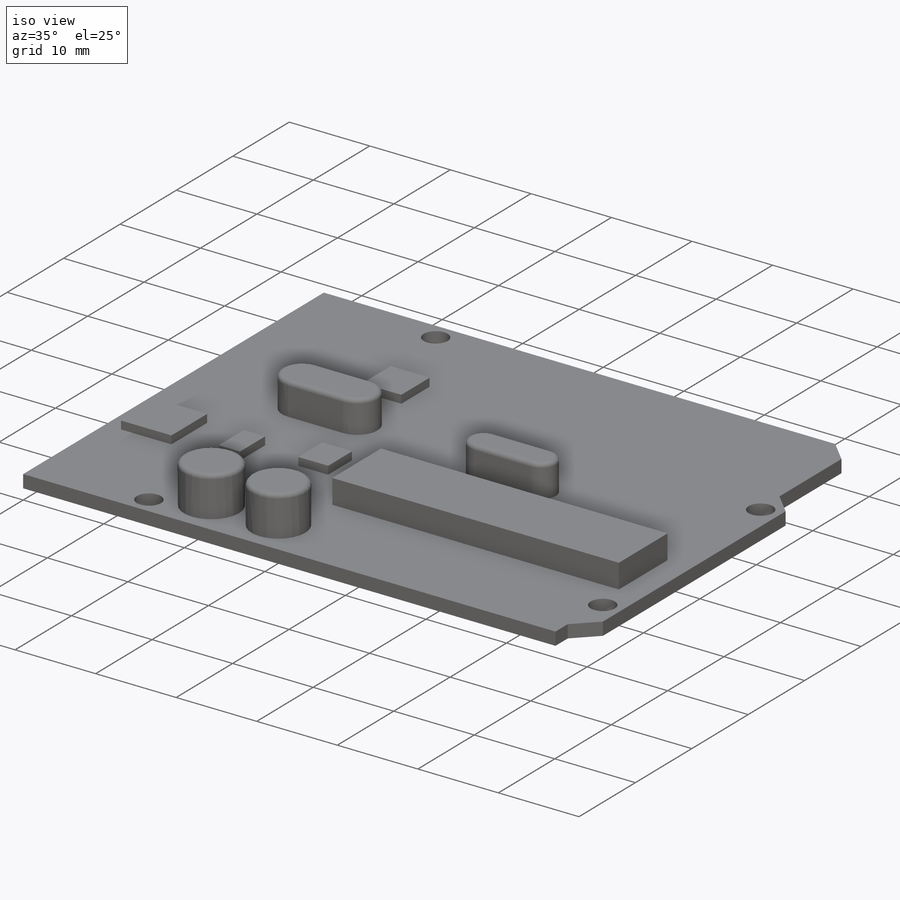
[diagram: iso view]
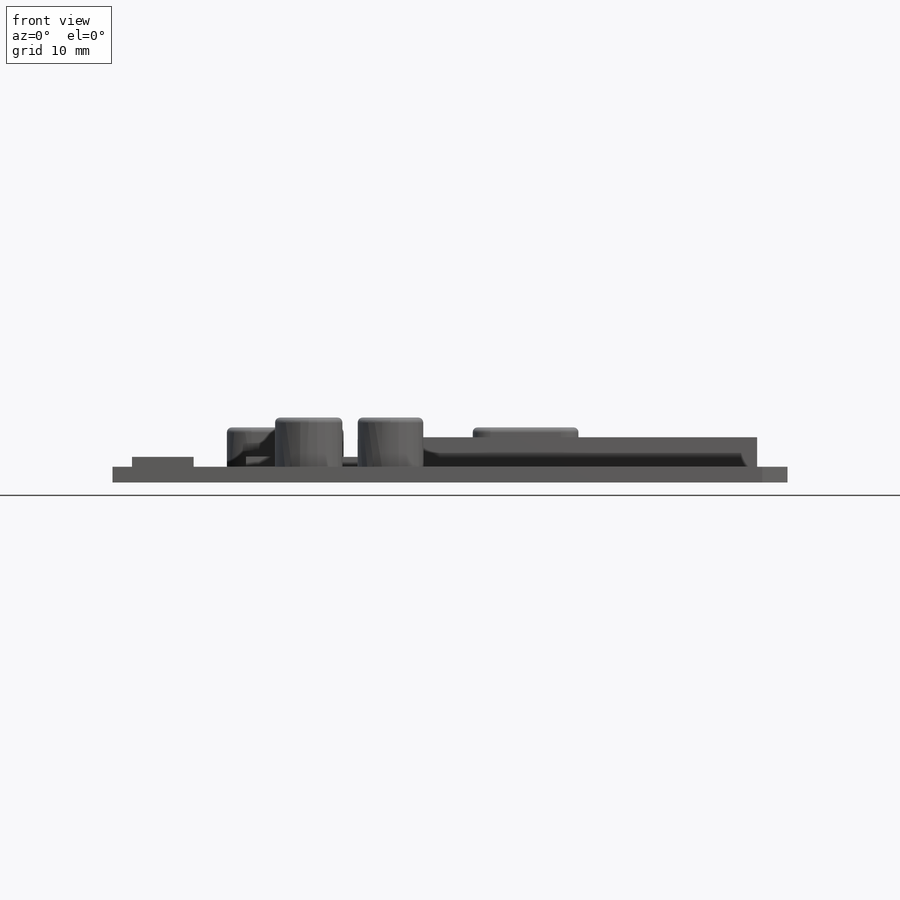
[diagram: front view]
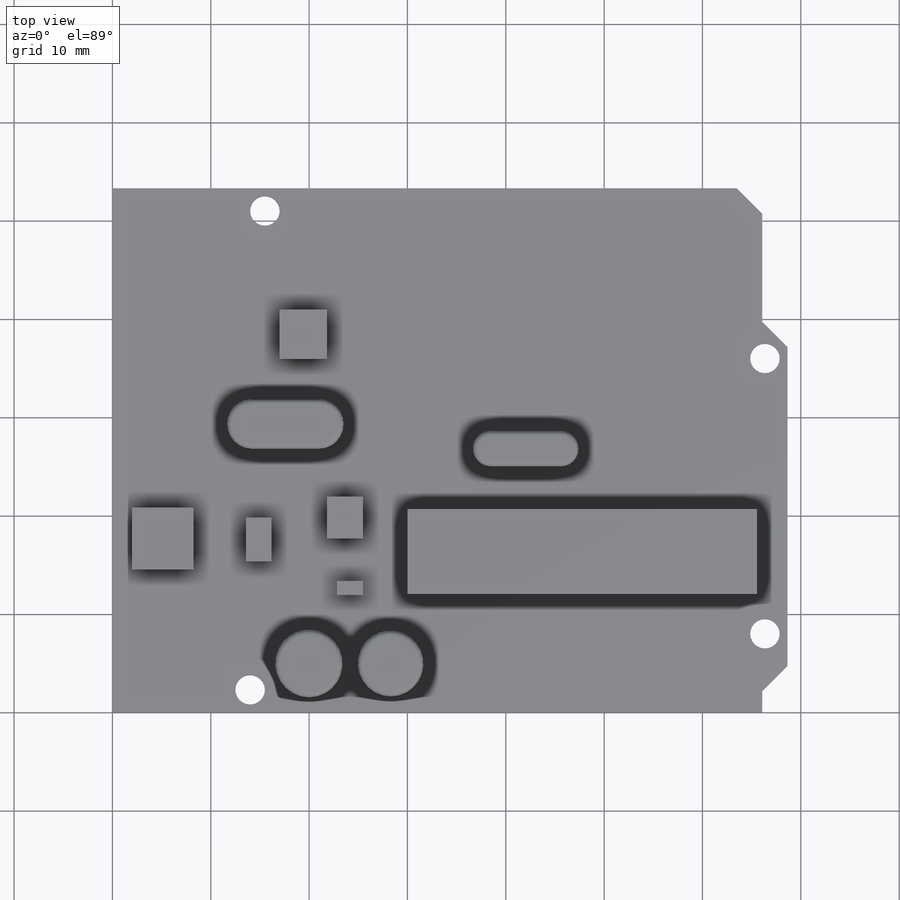
[diagram: top view]
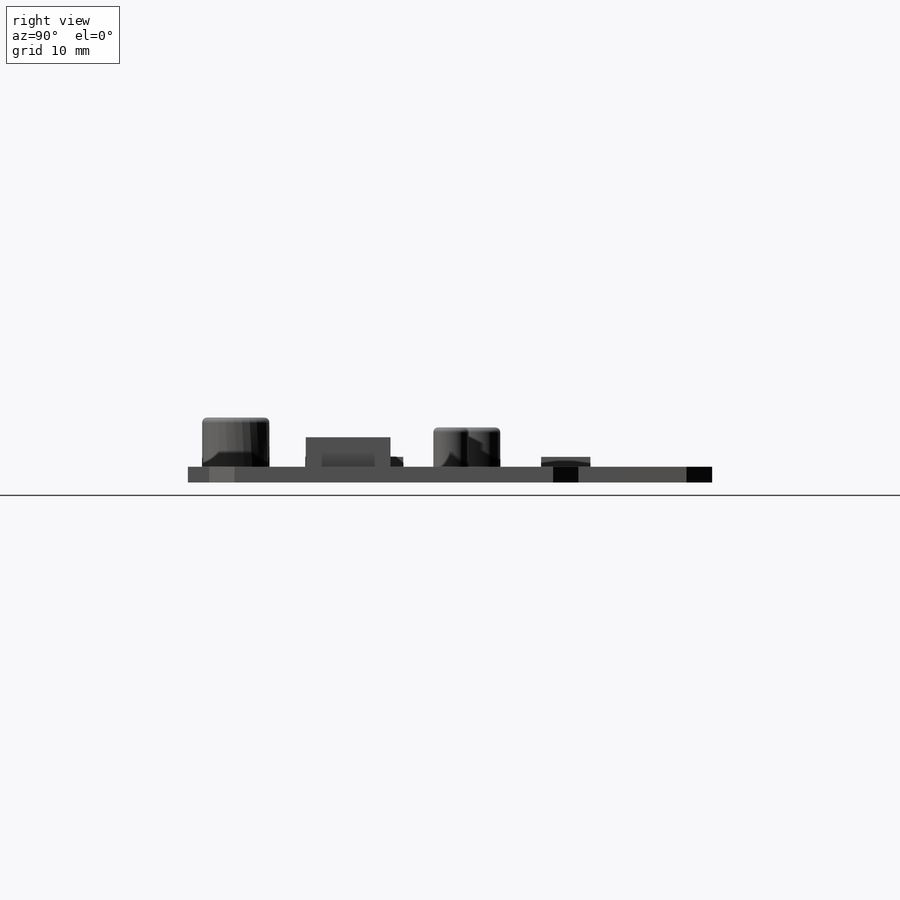
[diagram: right view]
SOLIDWORKS PART (.sldprt)
format: sldprt  version: not decoded by parser v0  size: 567,808 bytes
history: native  units: mm
features: sketch x6, extrude x5, plane x3, material x1, chamfer x1, cut_extrude x1, fillet x1 (+9 scaffold rows collapsed)
feature tree (27):
  scaffold x9  (default folders/planes/origin — collapsed)
  material  "Matériau <non spécifié>"
  plane  "Alzado"
  plane  "Planta"
  plane  "Vista lateral"
  sketch  "Croquis1"  dims[D1=68.65mm D2=53.3mm D3=66.08mm D4=37.6mm D5=~2.138846mm]
  extrude  "Saliente-Extruir1"  Depth=1.6mm
  chamfer  "Chaflán1"  Distance=2.6mm Angle=45deg
  sketch  "Croquis2"  dims[c1.D1=3.0mm c1.D2=2.9mm c1.D3=2.9mm c1.D4=2.9mm c1.D6=3.0mm c1.D8=3.0mm c2.D2=2.3mm c2.D3=28.0mm c2.D4=8.0mm c2.D5=15.5mm c2.D6=14.0mm c2.D7=2.3mm c2.D8=2.3mm]
  cut_extrude  "Cortar-Extruir1"  [1 undecoded]
  sketch  "Croquis3"
  extrude  "Saliente-Extruir2"  Depth=3mm
  sketch  "Croquis4"
  extrude  "Saliente-Extruir3"  Depth=5mm
  sketch  "Croquis5"
  extrude  "Saliente-Extruir4"  Depth=1mm
  sketch  "Croquis6"
  extrude  "Saliente-Extruir5"  Depth=4mm
  fillet  "Redondeo1"  Radius=0.5mm
decode coverage: 9 of 14 modeling features carry decoded parameters
note: ~ marks probable driven/reference dimensions
note: 1 parameter value undecoded
note: suppression state not decoded; provenance and decode notes live in map.json
